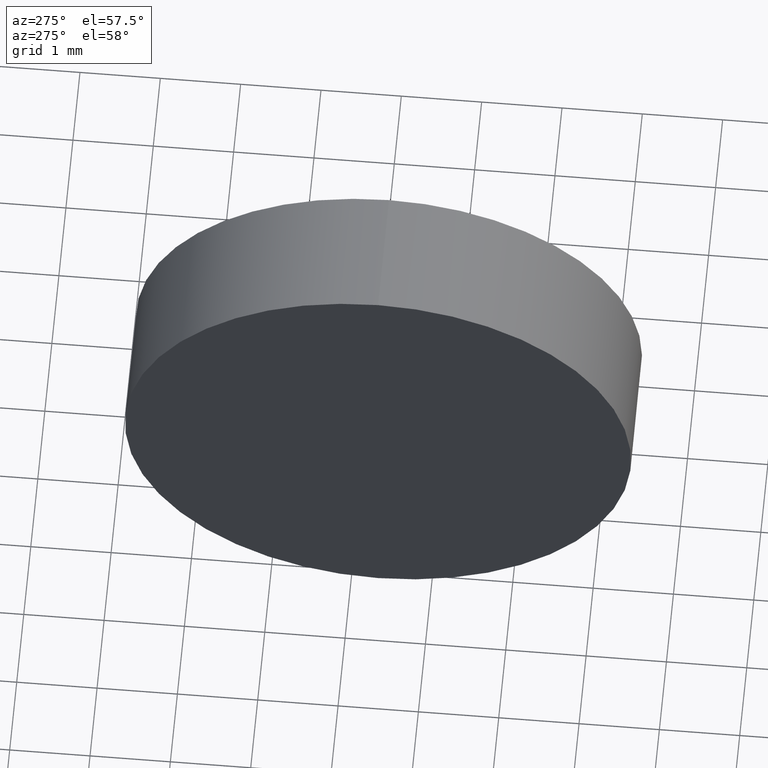
[diagram: clean part render]
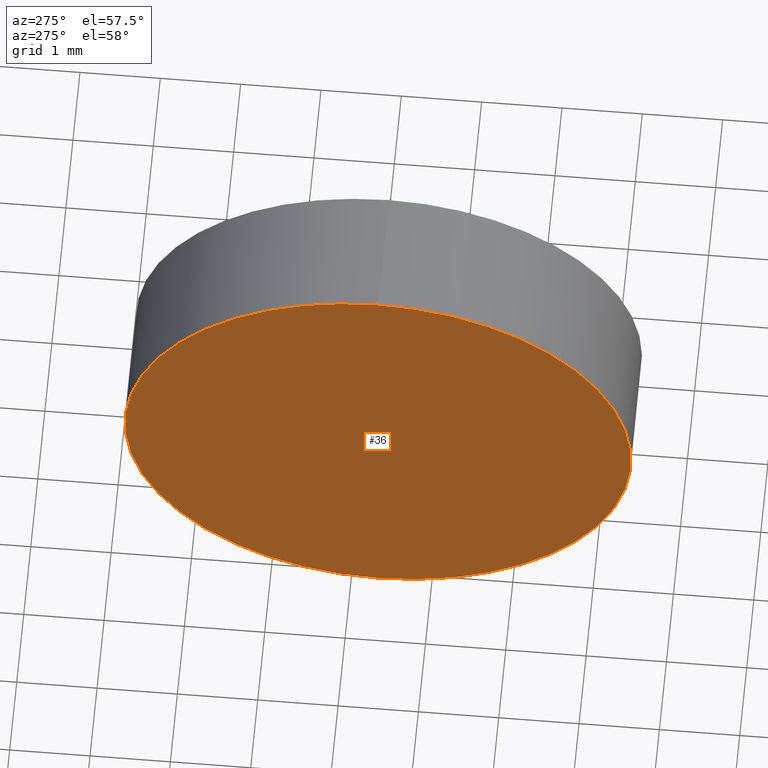
[diagram: same view with one face highlighted and labeled with its STEP entity id]
A machine part, auxiliary view. The second image highlights one B-rep face of the part: STEP entity #36.
In plain terms, the highlighted planar face has unit normal (1, 0, 0).
Its self-contained STEP definition (entity closure, byte-faithful):
#1 = CARTESIAN_POINT ( 'NONE',  ( 485.8289024889173200, 224.6626212863787900, -3.150000000000013700 ) ) ;
#5 = CIRCLE ( 'NONE', #7, 3.150000000000013700 ) ;
#7 = AXIS2_PLACEMENT_3D ( 'NONE', #59, #142, #110 ) ;
#16 = CARTESIAN_POINT ( 'NONE',  ( 485.8289024889173200, 224.6626212863787900, 0.0000000000000000000 ) ) ;
#32 = VERTEX_POINT ( 'NONE', #65 ) ;
#35 = EDGE_LOOP ( 'NONE', ( #72, #89 ) ) ;
#36 = ADVANCED_FACE ( 'NONE', ( #64 ), #169, .F. ) ;
#39 = DIRECTION ( 'NONE',  ( -1.000000000000000000, -0.0000000000000000000, -0.0000000000000000000 ) ) ;
#55 = CIRCLE ( 'NONE', #174, 3.150000000000013700 ) ;
#59 = CARTESIAN_POINT ( 'NONE',  ( 485.8289024889173200, 224.6626212863787900, 0.0000000000000000000 ) ) ;
#64 = FACE_OUTER_BOUND ( 'NONE', #35, .T. ) ;
#65 = CARTESIAN_POINT ( 'NONE',  ( 485.8289024889173200, 224.6626212863787900, 3.150000000000013700 ) ) ;
#72 = ORIENTED_EDGE ( 'NONE', *, *, #106, .T. ) ;
#89 = ORIENTED_EDGE ( 'NONE', *, *, #151, .T. ) ;
#106 = EDGE_CURVE ( 'NONE', #32, #123, #55, .T. ) ;
#110 = DIRECTION ( 'NONE',  ( 0.0000000000000000000, 0.0000000000000000000, 1.000000000000000000 ) ) ;
#119 = CARTESIAN_POINT ( 'NONE',  ( 485.8289024889173200, 224.6626212863787900, 0.0000000000000000000 ) ) ;
#123 = VERTEX_POINT ( 'NONE', #1 ) ;
#131 = DIRECTION ( 'NONE',  ( 1.000000000000000000, 0.0000000000000000000, 0.0000000000000000000 ) ) ;
#142 = DIRECTION ( 'NONE',  ( -1.000000000000000000, -0.0000000000000000000, -0.0000000000000000000 ) ) ;
#149 = DIRECTION ( 'NONE',  ( 0.0000000000000000000, 0.0000000000000000000, 1.000000000000000000 ) ) ;
#151 = EDGE_CURVE ( 'NONE', #123, #32, #5, .T. ) ;
#163 = AXIS2_PLACEMENT_3D ( 'NONE', #16, #131, #183 ) ;
#169 = PLANE ( 'NONE',  #163 ) ;
#174 = AXIS2_PLACEMENT_3D ( 'NONE', #119, #39, #149 ) ;
#183 = DIRECTION ( 'NONE',  ( 0.0000000000000000000, 0.0000000000000000000, -1.000000000000000000 ) ) ;